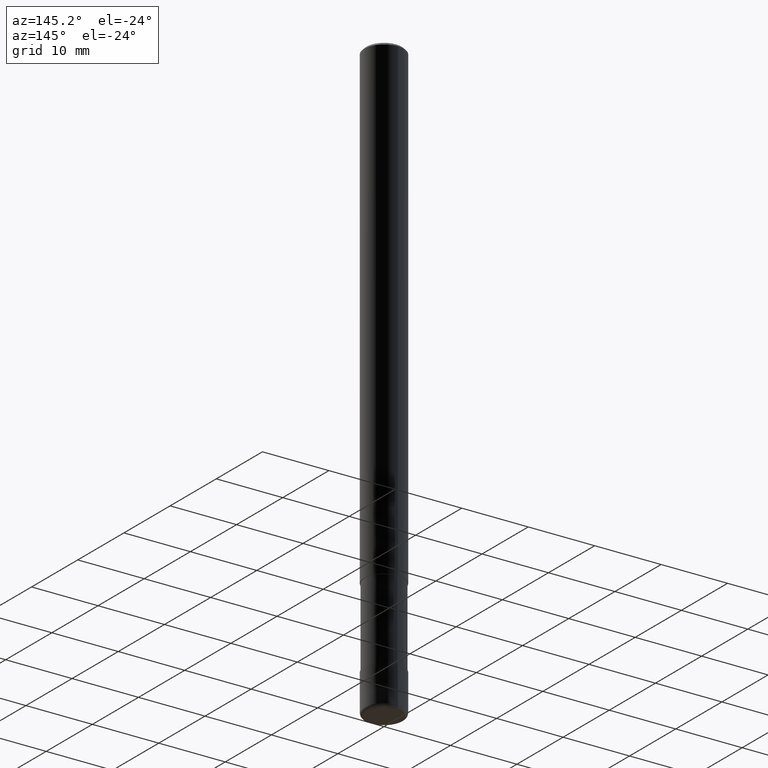
[diagram: clean part render]
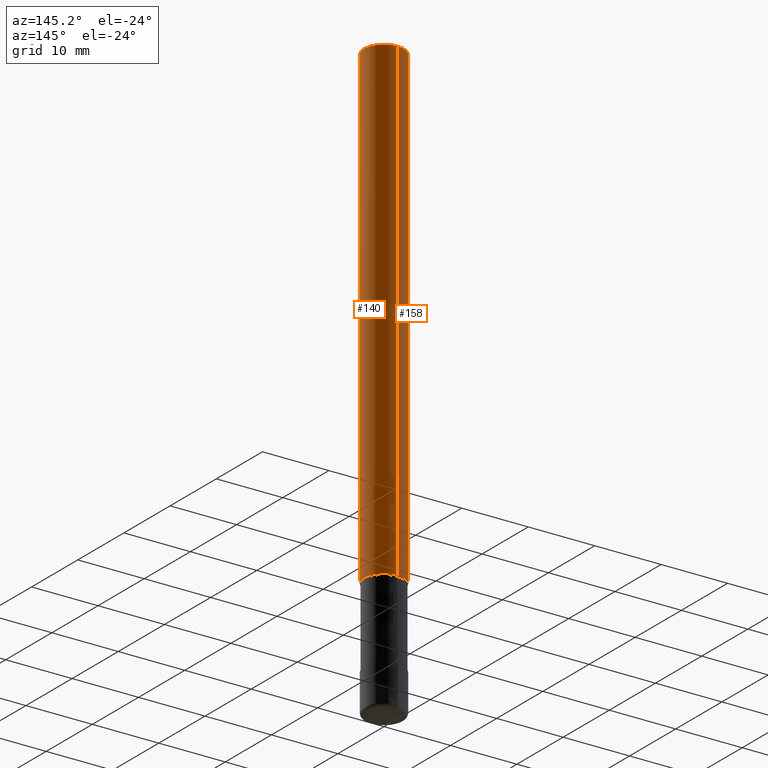
[diagram: same view with one multi-face feature highlighted, each face labeled with its STEP entity id]
A machine part, auxiliary view. The highlighted faces form ONE feature: a constant-radius fillet chain: 2 tangent blend faces with common blend radius 3 mm. The faces share edges in the B-rep.
Their STEP definitions:
[1] entity #140 (Cylinder):
#110=VERTEX_POINT('',#247);
#112=EDGE_CURVE('',#154,#174,#249,.T.);
#136=EDGE_CURVE('',#154,#110,#278,.T.);
#140=ADVANCED_FACE('',(#282),#283,.T.);
#150=VERTEX_POINT('',#293);
#154=VERTEX_POINT('',#297);
#166=EDGE_CURVE('',#110,#150,#311,.T.);
#174=VERTEX_POINT('',#322);
#186=EDGE_CURVE('',#150,#174,#336,.T.);
#247=CARTESIAN_POINT('',(0.0,3.0,-72.0));
#249=CIRCLE('',#402,3.0);
#278=LINE('',#435,#436);
#282=FACE_OUTER_BOUND('',#440,.T.);
#283=CYLINDRICAL_SURFACE('',#441,3.0);
#293=CARTESIAN_POINT('',(3.67381906146713E-016,-3.0,-72.0));
#297=CARTESIAN_POINT('',(0.0,3.0,-0.400000000000006));
#311=CIRCLE('',#480,3.0);
#322=CARTESIAN_POINT('',(3.67381906146713E-016,-3.0,-0.400000000000006));
#336=LINE('',#508,#509);
#402=AXIS2_PLACEMENT_3D('',#555,#556,#557);
#435=CARTESIAN_POINT('',(-3.67381906146713E-016,3.0,-36.2));
#436=VECTOR('',#596,1.0);
#440=EDGE_LOOP('',(#598,#599,#600,#601));
#441=AXIS2_PLACEMENT_3D('',#602,#603,#604);
#480=AXIS2_PLACEMENT_3D('',#634,#635,#636);
#508=CARTESIAN_POINT('',(3.67381906146713E-016,-3.0,-36.2));
#509=VECTOR('',#679,1.0);
#555=CARTESIAN_POINT('',(0.0,0.0,-0.400000000000006));
#556=DIRECTION('',(0.0,0.0,-1.0));
#557=DIRECTION('',(0.0,1.0,0.0));
#596=DIRECTION('',(0.0,0.0,-1.0));
#598=ORIENTED_EDGE('',*,*,#136,.F.);
#599=ORIENTED_EDGE('',*,*,#112,.T.);
#600=ORIENTED_EDGE('',*,*,#186,.F.);
#601=ORIENTED_EDGE('',*,*,#166,.F.);
#602=CARTESIAN_POINT('',(0.0,0.0,-36.2));
#603=DIRECTION('',(-0.0,-0.0,1.0));
#604=DIRECTION('',(0.0,1.0,0.0));
#634=CARTESIAN_POINT('',(0.0,0.0,-72.0));
#635=DIRECTION('',(0.0,0.0,-1.0));
#636=DIRECTION('',(0.0,1.0,0.0));
#679=DIRECTION('',(-0.0,-0.0,1.0));
[2] entity #158 (Cylinder):
#110=VERTEX_POINT('',#247);
#136=EDGE_CURVE('',#154,#110,#278,.T.);
#150=VERTEX_POINT('',#293);
#154=VERTEX_POINT('',#297);
#158=ADVANCED_FACE('',(#301),#302,.T.);
#174=VERTEX_POINT('',#322);
#178=EDGE_CURVE('',#150,#110,#327,.T.);
#180=EDGE_CURVE('',#174,#154,#329,.T.);
#186=EDGE_CURVE('',#150,#174,#336,.T.);
#247=CARTESIAN_POINT('',(0.0,3.0,-72.0));
#278=LINE('',#435,#436);
#293=CARTESIAN_POINT('',(3.67381906146713E-016,-3.0,-72.0));
#297=CARTESIAN_POINT('',(0.0,3.0,-0.400000000000006));
#301=FACE_OUTER_BOUND('',#465,.T.);
#302=CYLINDRICAL_SURFACE('',#466,3.0);
#322=CARTESIAN_POINT('',(3.67381906146713E-016,-3.0,-0.400000000000006));
#327=CIRCLE('',#497,3.0);
#329=CIRCLE('',#500,3.0);
#336=LINE('',#508,#509);
#435=CARTESIAN_POINT('',(-3.67381906146713E-016,3.0,-36.2));
#436=VECTOR('',#596,1.0);
#465=EDGE_LOOP('',(#619,#620,#621,#622));
#466=AXIS2_PLACEMENT_3D('',#623,#624,#625);
#497=AXIS2_PLACEMENT_3D('',#667,#668,#669);
#500=AXIS2_PLACEMENT_3D('',#670,#671,#672);
#508=CARTESIAN_POINT('',(3.67381906146713E-016,-3.0,-36.2));
#509=VECTOR('',#679,1.0);
#596=DIRECTION('',(0.0,0.0,-1.0));
#619=ORIENTED_EDGE('',*,*,#136,.T.);
#620=ORIENTED_EDGE('',*,*,#178,.F.);
#621=ORIENTED_EDGE('',*,*,#186,.T.);
#622=ORIENTED_EDGE('',*,*,#180,.T.);
#623=CARTESIAN_POINT('',(0.0,0.0,-36.2));
#624=DIRECTION('',(-0.0,-0.0,1.0));
#625=DIRECTION('',(0.0,1.0,0.0));
#667=CARTESIAN_POINT('',(0.0,0.0,-72.0));
#668=DIRECTION('',(0.0,0.0,-1.0));
#669=DIRECTION('',(0.0,1.0,0.0));
#670=CARTESIAN_POINT('',(0.0,0.0,-0.400000000000006));
#671=DIRECTION('',(0.0,0.0,-1.0));
#672=DIRECTION('',(0.0,1.0,0.0));
#679=DIRECTION('',(-0.0,-0.0,1.0));